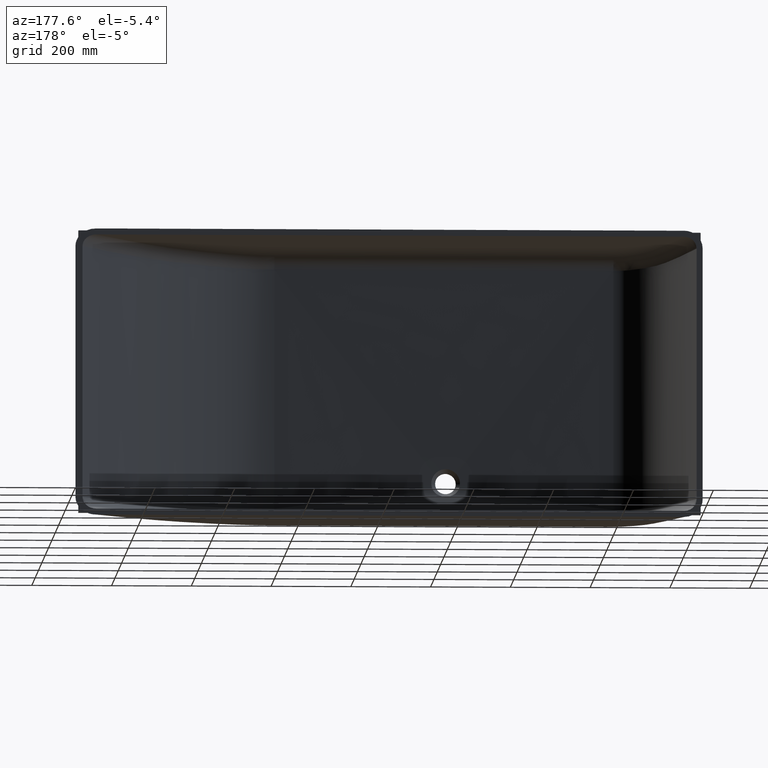
[diagram: clean part render]
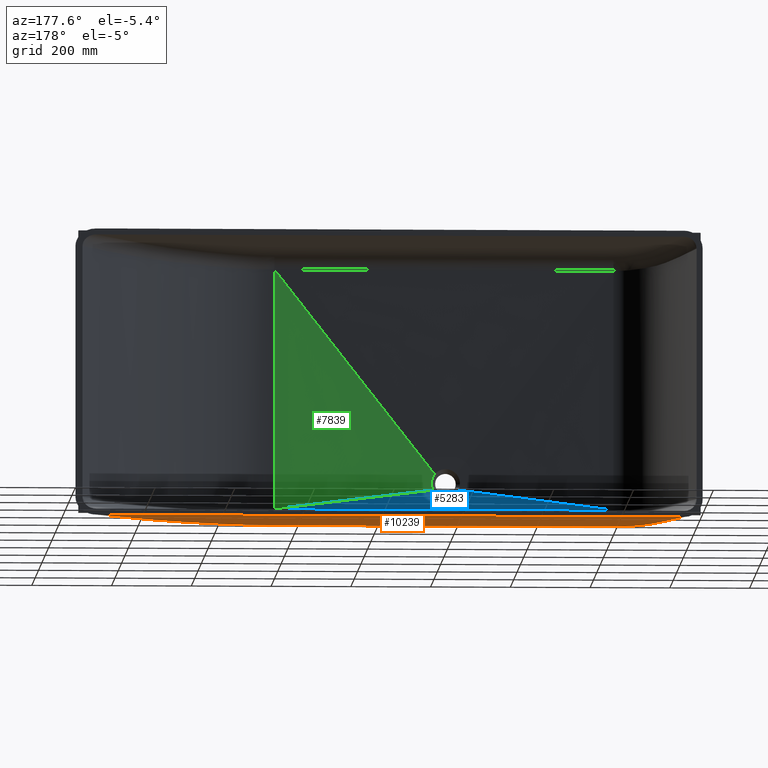
[diagram: same view with three faces highlighted in distinct colors, each labeled with its STEP entity id]
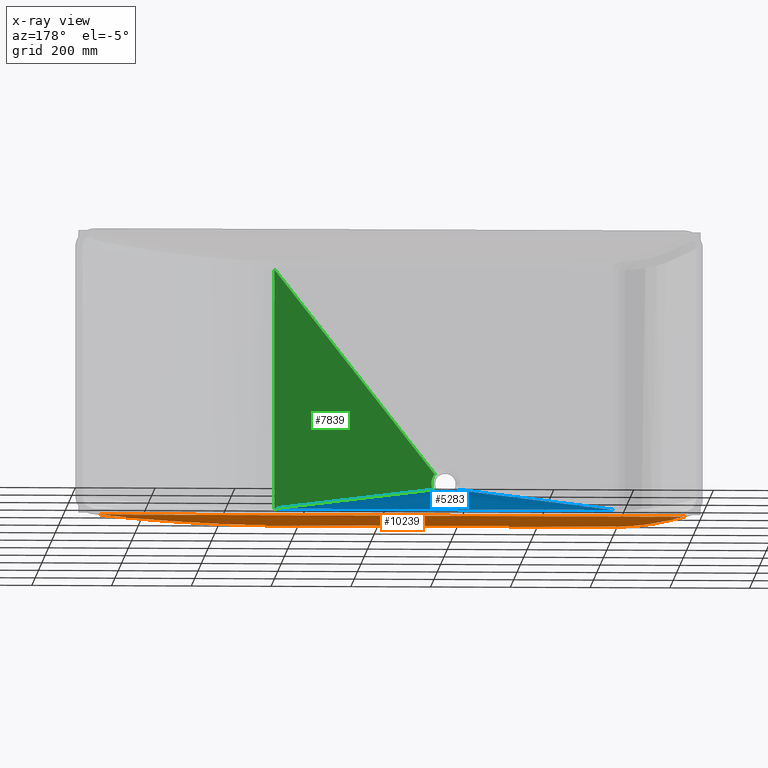
[diagram: x-ray of the same camera — body ghosted, the three highlighted faces saturated]
A machine part, auxiliary view with three faces highlighted in distinct colors.
The next image is the same camera in x-ray (body ghosted, the three faces saturated) — at least one of them is partly hidden behind the body in this view.
Their STEP definitions:

[orange] entity #10239 — the highlighted planar face has unit normal (0, -0.0333, -0.9994).
#10 = CARTESIAN_POINT ( 'NONE',  ( 1046.865730535653500, -421.4984982326275800, -0.9646515565076151400 ) ) ;
#57 = CARTESIAN_POINT ( 'NONE',  ( 1209.896210580514400, -346.9465903760623200, -3.448604754296329000 ) ) ;
#97 = CARTESIAN_POINT ( 'NONE',  ( 1093.178337236660800, -413.0805250620837800, -1.245125282493234200 ) ) ;
#103 = CARTESIAN_POINT ( 'NONE',  ( 1102.783573927033800, -409.7405222755598400, -1.356408961754285200 ) ) ;
#148 = CARTESIAN_POINT ( 'NONE',  ( 1067.025774963655300, -419.3927023063229700, -1.034813389724447400 ) ) ;
#153 = CARTESIAN_POINT ( 'NONE',  ( 1040.000000000000000, -421.4984982326274700, -0.9646515565076193600 ) ) ;
#190 = CARTESIAN_POINT ( 'NONE',  ( 1053.640508102532100, -421.0603657217691300, -0.9792494478652693500 ) ) ;
#195 = CARTESIAN_POINT ( 'NONE',  ( 1073.636302906296600, -418.1633575761898700, -1.075773237183749000 ) ) ;
#284 = CARTESIAN_POINT ( 'NONE',  ( 1086.712569645142400, -415.0071995986488700, -1.180931494382515100 ) ) ;
#433 = VECTOR ( 'NONE', #5955, 1000.000000000000000 ) ;
#717 = CARTESIAN_POINT ( 'NONE',  ( 1225.822637680009400, -334.4883271968789700, -3.863694636668772600 ) ) ;
#751 = VECTOR ( 'NONE', #10601, 1000.000000000000000 ) ;
#881 = EDGE_CURVE ( 'NONE', #1624, #5451, #8864, .T. ) ;
#1041 = CARTESIAN_POINT ( 'NONE',  ( 1223.174521956416600, -336.5745768866588000, -3.794184053542164000 ) ) ;
#1624 = VERTEX_POINT ( 'NONE', #3401 ) ;
#1881 = PLANE ( 'NONE',  #10833 ) ;
#1894 = DIRECTION ( 'NONE',  ( 0.0000000000000000000, 0.9994454025186718700, -0.03329996072505471400 ) ) ;
#1963 = DIRECTION ( 'NONE',  ( 5.251474874441641800E-019, -0.03329996072505471400, -0.9994454025186718700 ) ) ;
#2377 = VERTEX_POINT ( 'NONE', #9511 ) ;
#2415 = B_SPLINE_CURVE_WITH_KNOTS ( 'NONE', 3,
 ( #8277, #8339, #9143, #9171, #9193, #9213, #9227, #9233, #9248, #9272, #9297, #9312, #9322, #9342, #9359, #9362, #9402, #9419, #9431, #9461, #9475, #9489, #9512, #9564, #9582, #9617, #9618, #9657, #9700, #9727, #9745, #9747 ),
 .UNSPECIFIED., .F., .F.,
 ( 4, 2, 2, 2, 2, 2, 2, 2, 2, 2, 2, 2, 2, 2, 2, 4 ),
 ( 2.775896354064801500E-017, 0.02790883087507267700, 0.04186324631260909800, 0.05581766175014551300, 0.08372649262521826600, 0.1116353235002910300, 0.1186125312190591500, 0.1255897389378272400, 0.1395441543753634700, 0.1674529852504357000, 0.1953618161255079600, 0.2232706470005801900, 0.2790883087507248200, 0.3349059705008694000, 0.3907236322510139700, 0.4465412940011585000 ),
 .UNSPECIFIED. ) ;
#2442 = ORIENTED_EDGE ( 'NONE', *, *, #4609, .T. ) ;
#2730 = ORIENTED_EDGE ( 'NONE', *, *, #6078, .T. ) ;
#3230 = CARTESIAN_POINT ( 'NONE',  ( 30.20423168066489300, -2.294243974595697000E-014, -15.00832357845562500 ) ) ;
#3235 = LINE ( 'NONE', #5918, #433 ) ;
#3401 = CARTESIAN_POINT ( 'NONE',  ( 1505.568966152908600, 3.243769860183888700E-016, -15.00832357845562500 ) ) ;
#3683 = CARTESIAN_POINT ( 'NONE',  ( 190.0000000000001700, -421.4984982326275800, -0.9646515565076145800 ) ) ;
#4113 = VERTEX_POINT ( 'NONE', #3230 ) ;
#4404 = VERTEX_POINT ( 'NONE', #3683 ) ;
#4609 = EDGE_CURVE ( 'NONE', #5451, #4404, #3235, .T. ) ;
#4923 = LINE ( 'NONE', #5335, #751 ) ;
#5109 = CARTESIAN_POINT ( 'NONE',  ( 1490.919379188338100, -22.67712200114758400, -14.25275727128917500 ) ) ;
#5142 = EDGE_CURVE ( 'NONE', #2377, #4113, #2415, .T. ) ;
#5193 = CARTESIAN_POINT ( 'NONE',  ( 1505.568966152908600, 3.243769860183888700E-016, -15.00832357845562500 ) ) ;
#5205 = CARTESIAN_POINT ( 'NONE',  ( 1498.337011475481600, -11.40107286181569000, -14.62845762723389100 ) ) ;
#5207 = CARTESIAN_POINT ( 'NONE',  ( 1475.808980867540000, -45.04396237379493300, -13.50752906364947700 ) ) ;
#5224 = CARTESIAN_POINT ( 'NONE',  ( 170.0829550049796800, -413.9330991576792400, -1.216718844455781700 ) ) ;
#5242 = CARTESIAN_POINT ( 'NONE',  ( 1468.116131334333700, -56.13469738371957600, -13.13800308523007500 ) ) ;
#5256 = CARTESIAN_POINT ( 'NONE',  ( 175.6350607434774800, -418.8621611980603900, -1.052490191302330100 ) ) ;
#5258 = CARTESIAN_POINT ( 'NONE',  ( 1452.544538832019700, -78.19099835719318000, -12.40312156563358100 ) ) ;
#5271 = CARTESIAN_POINT ( 'NONE',  ( 1444.668362584578500, -89.15281948772523900, -12.03789079644716300 ) ) ;
#5294 = CARTESIAN_POINT ( 'NONE',  ( 1420.846444178742100, -121.8934052526219900, -10.94702558526212000 ) ) ;
#5307 = CARTESIAN_POINT ( 'NONE',  ( 1396.869185452995700, -154.5185800807556700, -9.860005686339219400 ) ) ;
#5332 = CARTESIAN_POINT ( 'NONE',  ( 1404.877057016953600, -143.6550019438840600, -10.22196315232950800 ) ) ;
#5335 = CARTESIAN_POINT ( 'NONE',  ( -3.009265538105056000E-033, -2.341876692568689600E-014, -15.00832357845562500 ) ) ;
#5336 = CARTESIAN_POINT ( 'NONE',  ( 1428.818675352227000, -111.0033478935276000, -11.30986529760424900 ) ) ;
#5349 = CARTESIAN_POINT ( 'NONE',  ( 1380.650724457041900, -176.0951260103047700, -9.141108855931412000 ) ) ;
#5372 = CARTESIAN_POINT ( 'NONE',  ( 1372.440230268814700, -186.8081645648591100, -8.784167133838721500 ) ) ;
#5385 = CARTESIAN_POINT ( 'NONE',  ( 1355.603470610837800, -207.9293987098498300, -8.080440581372270600 ) ) ;
#5387 = CARTESIAN_POINT ( 'NONE',  ( 1347.014477109476000, -218.3395620975385300, -7.733590187065758000 ) ) ;
#5399 = CARTESIAN_POINT ( 'NONE',  ( 1359.848763243580800, -202.6728704542242700, -8.255579897658467600 ) ) ;
#5421 = CARTESIAN_POINT ( 'NONE',  ( 1329.399988291124600, -238.7190672064635100, -7.054576888277174400 ) ) ;
#5436 = CARTESIAN_POINT ( 'NONE',  ( 1315.735757185329900, -253.5458448134157500, -6.560571802310213300 ) ) ;
#5451 = VERTEX_POINT ( 'NONE', #12392 ) ;
#5465 = CARTESIAN_POINT ( 'NONE',  ( 1333.862796063739300, -233.6839622286713300, -7.222338726577252300 ) ) ;
#5470 = CARTESIAN_POINT ( 'NONE',  ( 1292.367260423944100, -277.6564763358543400, -5.757243195534751800 ) ) ;
#5479 = CARTESIAN_POINT ( 'NONE',  ( 1342.670039686849800, -223.4942088803640300, -7.561845402421201200 ) ) ;
#5481 = CARTESIAN_POINT ( 'NONE',  ( 182.5756124340533400, -421.4984982326275300, -0.9646515565076149200 ) ) ;
#5488 = CARTESIAN_POINT ( 'NONE',  ( 1241.601761954845200, -321.8093662373190700, -4.286137824584647800 ) ) ;
#5505 = CARTESIAN_POINT ( 'NONE',  ( 1233.735999169755600, -328.1788782936541800, -4.073915625373759400 ) ) ;
#5510 = CARTESIAN_POINT ( 'NONE',  ( 1272.552217091908500, -295.8136490898813800, -5.152274541855872400 ) ) ;
#5518 = CARTESIAN_POINT ( 'NONE',  ( 1320.337417341580500, -248.6509663752467000, -6.723661511196834100 ) ) ;
#5520 = CARTESIAN_POINT ( 'NONE',  ( 190.0000000000001700, -421.4984982326275800, -0.9646515565076145800 ) ) ;
#5554 = CARTESIAN_POINT ( 'NONE',  ( 1177.198939147443100, -370.5375040999311400, -2.662592333314322400 ) ) ;
#5576 = CARTESIAN_POINT ( 'NONE',  ( 1246.801238970256000, -317.5182209673829400, -4.429112086704726900 ) ) ;
#5596 = CARTESIAN_POINT ( 'NONE',  ( 1165.993929280577500, -377.9208929188587300, -2.416589342987526500 ) ) ;
#5612 = CARTESIAN_POINT ( 'NONE',  ( 1231.102959158094800, -330.2908514724483700, -4.003547975746301700 ) ) ;
#5636 = CARTESIAN_POINT ( 'NONE',  ( 1199.150444469964700, -355.0509253115715800, -3.178580964727538000 ) ) ;
#5658 = CARTESIAN_POINT ( 'NONE',  ( 1148.658110306627600, -388.1666151877801700, -2.075217870073546900 ) ) ;
#5689 = CARTESIAN_POINT ( 'NONE',  ( 1142.791136785604500, -391.4431322571946300, -1.966049435808157100 ) ) ;
#5733 = CARTESIAN_POINT ( 'NONE',  ( 1130.844725480877500, -397.6626283065331800, -1.758825535782529800 ) ) ;
#5750 = CARTESIAN_POINT ( 'NONE',  ( 1124.766844078745600, -400.6080505798810800, -1.660688663299255900 ) ) ;
#5784 = CARTESIAN_POINT ( 'NONE',  ( 1117.006170223098900, -404.0334363982078100, -1.546560154697398600 ) ) ;
#5918 = CARTESIAN_POINT ( 'NONE',  ( 7.877212311662461000E-018, -421.4984982326274700, -0.9646515565076199100 ) ) ;
#5955 = DIRECTION ( 'NONE',  ( -1.000000000000000000, -1.748739070675182500E-020, -5.248562419703017300E-019 ) ) ;
#6067 = CARTESIAN_POINT ( 'NONE',  ( 1105.969753397151400, -408.5522040777181000, -1.396001869198085100 ) ) ;
#6078 = EDGE_CURVE ( 'NONE', #4404, #2377, #6100, .T. ) ;
#6100 =( BOUNDED_CURVE ( )  B_SPLINE_CURVE ( 3, ( #5520, #5481, #5256, #5224 ),
 .UNSPECIFIED., .F., .T. ) 
 B_SPLINE_CURVE_WITH_KNOTS ( ( 4, 4 ),
 ( 3.141592653589793100, 3.867616575456615600 ),
 .UNSPECIFIED. ) 
 CURVE ( )  GEOMETRIC_REPRESENTATION_ITEM ( )  RATIONAL_B_SPLINE_CURVE ( ( 1.000000000000000000, 0.9565543625811268000, 0.9565543625811268000, 1.000000000000000000 ) ) 
 REPRESENTATION_ITEM ( '' )  );
#6256 = CARTESIAN_POINT ( 'NONE',  ( 1112.307120440973200, -406.0217206859961700, -1.480313625845639700 ) ) ;
#6298 = CARTESIAN_POINT ( 'NONE',  ( 1115.445738749512400, -404.7054889418661200, -1.524168412984732800 ) ) ;
#6864 = CARTESIAN_POINT ( 'NONE',  ( 1110.727579799347500, -406.6664339557082700, -1.458832786065742600 ) ) ;
#7681 = FACE_OUTER_BOUND ( 'NONE', #8839, .T. ) ;
#7958 = CARTESIAN_POINT ( 'NONE',  ( 7.877212311662461000E-018, -0.4994994108758440400, -14.99168103778013100 ) ) ;
#8277 = CARTESIAN_POINT ( 'NONE',  ( 170.0829550049796800, -413.9330991576792400, -1.216718844455781700 ) ) ;
#8339 = CARTESIAN_POINT ( 'NONE',  ( 163.1914191799462500, -407.6524964218695000, -1.425978723889993700 ) ) ;
#8731 = ORIENTED_EDGE ( 'NONE', *, *, #11681, .F. ) ;
#8839 = EDGE_LOOP ( 'NONE', ( #8731, #12344, #2442, #2730, #9797 ) ) ;
#8864 = B_SPLINE_CURVE_WITH_KNOTS ( 'NONE', 3,
 ( #5193, #5205, #5109, #5207, #5242, #5258, #5271, #5336, #5294, #5332, #5307, #5349, #5372, #5399, #5385, #5387, #5479, #5465, #5421, #5518, #5436, #5470, #5510, #5576, #5488, #5505, #5612, #717, #1041, #57, #5636, #5554, #5596, #5658, #5689, #5733, #5750, #5784, #6298, #6256, #6864, #6067, #103, #97, #284, #195, #148, #190, #10, #153 ),
 .UNSPECIFIED., .F., .F.,
 ( 4, 2, 2, 2, 2, 2, 2, 2, 2, 2, 2, 2, 2, 2, 2, 2, 2, 2, 2, 2, 2, 2, 2, 2, 4 ),
 ( 0.0000000000000000000, 0.04050428562333218500, 0.08100857124666437100, 0.1215128568699965600, 0.1620171424933287400, 0.2025214281166609300, 0.2430257137399931800, 0.2632778565516591400, 0.2835299993633250700, 0.3037821421749910000, 0.3240342849866569800, 0.4050428562333212000, 0.4252949990449871300, 0.4354210704508198500, 0.4455471418566526700, 0.4860514274799823100, 0.5265557131033119500, 0.5468078559149768300, 0.5670599987266415900, 0.5721230344295579200, 0.5771860701324743600, 0.5873121415383071300, 0.6075642843499726700, 0.6278164271616382100, 0.6480685699733038700 ),
 .UNSPECIFIED. ) ;
#9143 = CARTESIAN_POINT ( 'NONE',  ( 156.7786301965437900, -400.9167312487763300, -1.650403905247460600 ) ) ;
#9171 = CARTESIAN_POINT ( 'NONE',  ( 147.8599452476674100, -390.1470934735686500, -2.009231425023641400 ) ) ;
#9193 = CARTESIAN_POINT ( 'NONE',  ( 145.0286069605856800, -386.4769695903866000, -2.131514223922096600 ) ) ;
#9213 = CARTESIAN_POINT ( 'NONE',  ( 139.6321742130001800, -378.9968548042912700, -2.380739972490407900 ) ) ;
#9227 = CARTESIAN_POINT ( 'NONE',  ( 137.0659753103964800, -375.1855600733426300, -2.507726363675162300 ) ) ;
#9233 = CARTESIAN_POINT ( 'NONE',  ( 129.7276490532976800, -363.5572720065110300, -2.895162770855876900 ) ) ;
#9248 = CARTESIAN_POINT ( 'NONE',  ( 125.3155634717982300, -355.5459981923677300, -3.162085909124862800 ) ) ;
#9272 = CARTESIAN_POINT ( 'NONE',  ( 117.2625983124196700, -339.1073036543106100, -3.709797551110467100 ) ) ;
#9297 = CARTESIAN_POINT ( 'NONE',  ( 113.6215535330783700, -330.6799720739950900, -3.990583084701670100 ) ) ;
#9312 = CARTESIAN_POINT ( 'NONE',  ( 109.4394638183422900, -319.9465765180829100, -4.348203070303315000 ) ) ;
#9322 = CARTESIAN_POINT ( 'NONE',  ( 108.6215337900258100, -317.7899212286736200, -4.420059458109761900 ) ) ;
#9342 = CARTESIAN_POINT ( 'NONE',  ( 107.0199458597028200, -313.4581172260640200, -4.564388405736130100 ) ) ;
#9359 = CARTESIAN_POINT ( 'NONE',  ( 106.2358389654747100, -311.2816684628168700, -4.636904281194250500 ) ) ;
#9362 = CARTESIAN_POINT ( 'NONE',  ( 103.9351295599423400, -304.7387901695480000, -4.854902772803300500 ) ) ;
#9402 = CARTESIAN_POINT ( 'NONE',  ( 102.4697284917903100, -300.3582791480629300, -5.000854562269325700 ) ) ;
#9419 = CARTESIAN_POINT ( 'NONE',  ( 98.24192383926967400, -287.1709762795051700, -5.440234909095398300 ) ) ;
#9431 = CARTESIAN_POINT ( 'NONE',  ( 95.64713211700603800, -278.3186284463168900, -5.735181320802007900 ) ) ;
#9461 = CARTESIAN_POINT ( 'NONE',  ( 90.73180537936723100, -260.5393913091026500, -6.327557749668123700 ) ) ;
#9475 = CARTESIAN_POINT ( 'NONE',  ( 88.41158069835793800, -251.6124176578956600, -6.624990577143958800 ) ) ;
#9489 = CARTESIAN_POINT ( 'NONE',  ( 83.89444321291374300, -233.7249548628042200, -7.220972915995422300 ) ) ;
#9511 = CARTESIAN_POINT ( 'NONE',  ( 170.0829550049796800, -413.9330991576792400, -1.216718844455781700 ) ) ;
#9512 = CARTESIAN_POINT ( 'NONE',  ( 81.69774966542715300, -224.7644061260820100, -7.519524412911246200 ) ) ;
#9564 = CARTESIAN_POINT ( 'NONE',  ( 75.08664670654552300, -197.8884736663799200, -8.414988530412737000 ) ) ;
#9582 = CARTESIAN_POINT ( 'NONE',  ( 70.63677403503044200, -179.9822544861467300, -9.011595802739595500 ) ) ;
#9617 = CARTESIAN_POINT ( 'NONE',  ( 61.81638166634287800, -144.1509774018236400, -10.20543802426526400 ) ) ;
#9618 = CARTESIAN_POINT ( 'NONE',  ( 57.44579579394645900, -126.2264238442567300, -10.80265616942536700 ) ) ;
#9657 = CARTESIAN_POINT ( 'NONE',  ( 48.96446075374787900, -90.31883579043676500, -11.99904095333687300 ) ) ;
#9700 = CARTESIAN_POINT ( 'NONE',  ( 44.85279648619835100, -72.33600725389342800, -12.59820072983214300 ) ) ;
#9727 = CARTESIAN_POINT ( 'NONE',  ( 37.10341975760739100, -36.26367877508707900, -13.80007440755220600 ) ) ;
#9745 = CARTESIAN_POINT ( 'NONE',  ( 33.46406215819821000, -18.17454910089754000, -14.40277597202280500 ) ) ;
#9747 = CARTESIAN_POINT ( 'NONE',  ( 30.20423168066489300, -2.294243974595697000E-014, -15.00832357845562500 ) ) ;
#9797 = ORIENTED_EDGE ( 'NONE', *, *, #5142, .T. ) ;
#10239 = ADVANCED_FACE ( 'NONE', ( #7681 ), #1881, .T. ) ;
#10601 = DIRECTION ( 'NONE',  ( -1.000000000000000000, -1.577021341797097500E-017, 0.0000000000000000000 ) ) ;
#10833 = AXIS2_PLACEMENT_3D ( 'NONE', #7958, #1963, #1894 ) ;
#11681 = EDGE_CURVE ( 'NONE', #1624, #4113, #4923, .T. ) ;
#12344 = ORIENTED_EDGE ( 'NONE', *, *, #881, .T. ) ;
#12392 = CARTESIAN_POINT ( 'NONE',  ( 1040.000000000000000, -421.4984982326274700, -0.9646515565076193600 ) ) ;

[blue] entity #5283 — the highlighted face is a freeform B-spline surface patch.
#1 = CARTESIAN_POINT ( 'NONE',  ( 595.5589996753749300, -460.0000000000000600, 88.27742880201418500 ) ) ;
#3 = CARTESIAN_POINT ( 'NONE',  ( 367.0833333333334300, -450.0000000000001100, 44.01039155683261600 ) ) ;
#11 = CARTESIAN_POINT ( 'NONE',  ( 599.2336019038665400, -460.0000000000001100, 86.24084888168448500 ) ) ;
#27 = CARTESIAN_POINT ( 'NONE',  ( 437.9166666666667400, -450.0000000000000600, 44.01039155683261600 ) ) ;
#43 = CARTESIAN_POINT ( 'NONE',  ( 601.2555615957861600, -460.0000000000001100, 85.41558565805834700 ) ) ;
#45 = CARTESIAN_POINT ( 'NONE',  ( 473.3333333333333700, -450.0000000000000600, 44.01039155683261600 ) ) ;
#84 = CARTESIAN_POINT ( 'NONE',  ( 579.5833333333333700, -450.0000000000000600, 44.01039155683262300 ) ) ;
#98 = CARTESIAN_POINT ( 'NONE',  ( 605.5190561606373200, -460.0000000000001100, 84.29436299466918600 ) ) ;
#117 = CARTESIAN_POINT ( 'NONE',  ( 650.4166666666666300, -450.0000000000000600, 44.01039155683261600 ) ) ;
#138 = CARTESIAN_POINT ( 'NONE',  ( 607.7589222424927600, -460.0000000000000600, 83.99999999999992900 ) ) ;
#166 = CARTESIAN_POINT ( 'NONE',  ( 593.9064925843240400, -459.9999999999999400, 89.48674265251605700 ) ) ;
#271 = CARTESIAN_POINT ( 'NONE',  ( 1076.428099985753500, -449.9999999999999400, 44.01039155683261600 ) ) ;
#280 = CARTESIAN_POINT ( 'NONE',  ( 756.6666666666666300, -450.0000000000000000, 44.01039155683261600 ) ) ;
#303 = CARTESIAN_POINT ( 'NONE',  ( 614.4809438393630200, -460.0000000000001100, 84.29436299466918600 ) ) ;
#339 = B_SPLINE_SURFACE_WITH_KNOTS ( 'NONE', 3, 1, ( 
 ( #9126, #12713 ),
 ( #12757, #12793 ),
 ( #12801, #12820 ),
 ( #12846, #12870 ),
 ( #12878, #12367 ),
 ( #12892, #12365 ),
 ( #400, #166 ),
 ( #3, #1 ),
 ( #27, #11 ),
 ( #45, #43 ),
 ( #688, #98 ),
 ( #84, #138 ),
 ( #117, #602 ),
 ( #779, #303 ),
 ( #280, #902 ),
 ( #953, #973 ),
 ( #991, #999 ),
 ( #1014, #1026 ),
 ( #1070, #1081 ),
 ( #1073, #1130 ),
 ( #1105, #921 ),
 ( #1149, #10144 ),
 ( #874, #761 ),
 ( #271, #462 ) ),
 .UNSPECIFIED., .F., .F., .F.,
 ( 4, 3, 2, 2, 2, 2, 2, 2, 2, 3, 4 ),
 ( 2, 2 ),
 ( -0.04116939064567356300, 0.0000000000000000000, 0.1250000000000000000, 0.2500000000000000000, 0.3750000000000000000, 0.5000000000000000000, 0.6250000000000000000, 0.7500000000000000000, 0.8750000000000000000, 1.000000000000000000, 1.042856588218533700 ),
 ( 0.0000000000000000000, 1.000000000000000000 ),
 .UNSPECIFIED. ) ;
#347 = CARTESIAN_POINT ( 'NONE',  ( 577.8299513548794300, -459.7414092245232400, 94.10762083505537100 ) ) ;
#387 = VERTEX_POINT ( 'NONE', #2347 ) ;
#400 = CARTESIAN_POINT ( 'NONE',  ( 331.6666666666668000, -450.0000000000000600, 44.01039155683261600 ) ) ;
#462 = CARTESIAN_POINT ( 'NONE',  ( 632.2689527080324300, -459.9999999999998300, 96.45742880846948700 ) ) ;
#557 = CARTESIAN_POINT ( 'NONE',  ( 641.9229721228485900, -459.7381218790376400, 93.63867329425293900 ) ) ;
#602 = CARTESIAN_POINT ( 'NONE',  ( 612.2410777575074700, -460.0000000000001100, 83.99999999999992900 ) ) ;
#688 = CARTESIAN_POINT ( 'NONE',  ( 544.1666666666667400, -450.0000000000000600, 44.01039155683261600 ) ) ;
#761 = CARTESIAN_POINT ( 'NONE',  ( 631.9185892429543400, -459.9999999999998900, 95.96271248444624300 ) ) ;
#779 = CARTESIAN_POINT ( 'NONE',  ( 685.8333333333332600, -450.0000000000000000, 44.01039155683261600 ) ) ;
#874 = CARTESIAN_POINT ( 'NONE',  ( 1064.285399990502400, -449.9999999999999400, 44.01039155683261600 ) ) ;
#902 = CARTESIAN_POINT ( 'NONE',  ( 618.7444384042138400, -460.0000000000000000, 85.41558565805833300 ) ) ;
#921 = CARTESIAN_POINT ( 'NONE',  ( 631.2178623127980500, -460.0000000000000000, 94.97327983639975500 ) ) ;
#953 = CARTESIAN_POINT ( 'NONE',  ( 792.0833333333332600, -450.0000000000000600, 44.01039155683261600 ) ) ;
#973 = CARTESIAN_POINT ( 'NONE',  ( 620.7663980961336800, -460.0000000000000000, 86.24084888168447100 ) ) ;
#991 = CARTESIAN_POINT ( 'NONE',  ( 862.9166666666665200, -450.0000000000000600, 44.01039155683261600 ) ) ;
#999 = CARTESIAN_POINT ( 'NONE',  ( 624.4410003246254100, -460.0000000000000000, 88.27742880201417100 ) ) ;
#1006 = EDGE_CURVE ( 'NONE', #3521, #7382, #4308, .T. ) ;
#1014 = CARTESIAN_POINT ( 'NONE',  ( 898.3333333333333700, -450.0000000000000000, 44.01039155683261600 ) ) ;
#1026 = CARTESIAN_POINT ( 'NONE',  ( 626.0935074156759600, -460.0000000000000600, 89.48674265251607100 ) ) ;
#1064 = CARTESIAN_POINT ( 'NONE',  ( 578.1019266185760400, -459.7321793014460200, 93.60838820246323200 ) ) ;
#1070 = CARTESIAN_POINT ( 'NONE',  ( 969.1666666666667400, -449.9999999999999400, 44.01039155683261600 ) ) ;
#1073 = CARTESIAN_POINT ( 'NONE',  ( 1004.583333333333400, -449.9999999999999400, 44.01039155683261600 ) ) ;
#1081 = CARTESIAN_POINT ( 'NONE',  ( 628.9705107992243700, -460.0000000000001100, 92.11384815118025000 ) ) ;
#1105 = CARTESIAN_POINT ( 'NONE',  ( 1040.000000000000000, -449.9999999999999400, 44.01039155683261600 ) ) ;
#1130 = CARTESIAN_POINT ( 'NONE',  ( 630.1959556479129100, -460.0000000000001100, 93.53033855074315300 ) ) ;
#1149 = CARTESIAN_POINT ( 'NONE',  ( 1052.142699995251200, -449.9999999999999400, 44.01039155683261600 ) ) ;
#1195 = ORIENTED_EDGE ( 'NONE', *, *, #1006, .F. ) ;
#1515 = CARTESIAN_POINT ( 'NONE',  ( 641.7082372391884100, -459.7312248473001000, 93.24274362230563900 ) ) ;
#1695 = CARTESIAN_POINT ( 'NONE',  ( 641.4860881880986200, -459.7240054388799400, 92.85360833836253400 ) ) ;
#1715 = CARTESIAN_POINT ( 'NONE',  ( 640.3523502936832300, -459.6868330087318700, 90.96974875358235100 ) ) ;
#1753 = CARTESIAN_POINT ( 'NONE',  ( 639.3296508886293200, -459.6492640528853100, 89.54899106228705800 ) ) ;
#1758 = CARTESIAN_POINT ( 'NONE',  ( 637.0703499586894600, -459.5517191933153600, 86.94077587668543600 ) ) ;
#1801 = CARTESIAN_POINT ( 'NONE',  ( 635.8155593358801500, -459.4898565637245700, 85.74155865446967100 ) ) ;
#1868 = CARTESIAN_POINT ( 'NONE',  ( 633.1820253354549100, -459.3383420943818000, 83.65362285404570700 ) ) ;
#1883 = CARTESIAN_POINT ( 'NONE',  ( 631.7896791716102600, -459.2475102175193300, 82.73733760727184000 ) ) ;
#1911 = CARTESIAN_POINT ( 'NONE',  ( 627.4150815820578400, -458.9337072455730900, 80.28005315529458100 ) ) ;
#1925 = CARTESIAN_POINT ( 'NONE',  ( 624.1533545685929300, -458.6498953803912300, 78.88234088648559400 ) ) ;
#1952 = FACE_OUTER_BOUND ( 'NONE', #3035, .T. ) ;
#1966 = CARTESIAN_POINT ( 'NONE',  ( 617.3674342039987600, -458.2187820260701300, 76.88994525980703500 ) ) ;
#1989 = CARTESIAN_POINT ( 'NONE',  ( 613.7130179710937900, -458.0826386084223700, 76.32630200226921600 ) ) ;
#2003 = CARTESIAN_POINT ( 'NONE',  ( 606.4283861625422100, -458.0765409850619100, 76.31609717986118800 ) ) ;
#2007 = CARTESIAN_POINT ( 'NONE',  ( 602.8740960409400000, -458.1986791642150900, 76.83458700326781400 ) ) ;
#2009 = ORIENTED_EDGE ( 'NONE', *, *, #5070, .F. ) ;
#2049 = CARTESIAN_POINT ( 'NONE',  ( 595.9755447452460000, -458.6210605726631700, 78.82007195794577100 ) ) ;
#2065 = CARTESIAN_POINT ( 'NONE',  ( 592.7135388228497300, -458.9040036705960100, 80.22157582049997900 ) ) ;
#2094 = CARTESIAN_POINT ( 'NONE',  ( 588.2839052542149100, -459.2263970814310000, 82.70983685289449700 ) ) ;
#2157 = CARTESIAN_POINT ( 'NONE',  ( 586.8721533422616400, -459.3202584536175000, 83.63715021246559900 ) ) ;
#2183 = CARTESIAN_POINT ( 'NONE',  ( 584.2061060843932400, -459.4769327553827300, 85.74682164018368300 ) ) ;
#2200 = CARTESIAN_POINT ( 'NONE',  ( 582.9651113214110900, -459.5396856372410600, 86.92948160627037200 ) ) ;
#2211 = CARTESIAN_POINT ( 'NONE',  ( 580.7069141500530800, -459.6401121769367300, 89.52116516661469300 ) ) ;
#2218 = CARTESIAN_POINT ( 'NONE',  ( 579.6823673875713900, -459.6789614433692500, 90.93594568798256700 ) ) ;
#2252 = CARTESIAN_POINT ( 'NONE',  ( 578.5409128617989200, -459.7175508023578900, 92.82301713489418700 ) ) ;
#2268 = CARTESIAN_POINT ( 'NONE',  ( 578.3176435509880100, -459.7250315719314800, 93.21239449179088900 ) ) ;
#2300 = CARTESIAN_POINT ( 'NONE',  ( 578.1019266185760400, -459.7321793014460200, 93.60838820246323200 ) ) ;
#2347 = CARTESIAN_POINT ( 'NONE',  ( 641.9229721228485900, -459.7381218790376400, 93.63867329425293900 ) ) ;
#2393 = ORIENTED_EDGE ( 'NONE', *, *, #2664, .F. ) ;
#2467 = CARTESIAN_POINT ( 'NONE',  ( 1040.000000000000900, -449.9999999999999400, 44.01039155683258700 ) ) ;
#2512 = CARTESIAN_POINT ( 'NONE',  ( 1040.000000000000000, -449.9999999999999400, 44.01039155683261600 ) ) ;
#2613 = DIRECTION ( 'NONE',  ( 1.000000000000000000, 1.306144734853125600E-016, -3.826431479001173600E-018 ) ) ;
#2664 = EDGE_CURVE ( 'NONE', #3526, #387, #4711, .T. ) ;
#2738 = EDGE_CURVE ( 'NONE', #7382, #10899, #11263, .T. ) ;
#2920 = ORIENTED_EDGE ( 'NONE', *, *, #3883, .F. ) ;
#3035 = EDGE_LOOP ( 'NONE', ( #2009, #4994, #8074, #4322, #1195, #2920, #2393, #5098 ) ) ;
#3521 = VERTEX_POINT ( 'NONE', #9124 ) ;
#3526 = VERTEX_POINT ( 'NONE', #8456 ) ;
#3883 = EDGE_CURVE ( 'NONE', #387, #3521, #10152, .T. ) ;
#4264 = CARTESIAN_POINT ( 'NONE',  ( 190.0000000000027600, -450.0000000000001100, 44.01039155683277200 ) ) ;
#4308 = B_SPLINE_CURVE_WITH_KNOTS ( 'NONE', 3,
 ( #1064, #347, #8428, #5938 ),
 .UNSPECIFIED., .F., .F.,
 ( 4, 4 ),
 ( 0.0000000000000000000, 1.000000000000000000 ),
 .UNSPECIFIED. ) ;
#4322 = ORIENTED_EDGE ( 'NONE', *, *, #2738, .F. ) ;
#4408 = CARTESIAN_POINT ( 'NONE',  ( 578.0266683209730400, -459.7302920981214200, 93.59877046924403000 ) ) ;
#4711 = B_SPLINE_CURVE_WITH_KNOTS ( 'NONE', 3,
 ( #7975, #12529, #12278, #12202 ),
 .UNSPECIFIED., .F., .F.,
 ( 4, 4 ),
 ( 0.0000000000000000000, 1.000000000000000000 ),
 .UNSPECIFIED. ) ;
#4851 = EDGE_CURVE ( 'NONE', #6123, #10899, #8145, .T. ) ;
#4935 = LINE ( 'NONE', #8055, #9800 ) ;
#4994 = ORIENTED_EDGE ( 'NONE', *, *, #9254, .F. ) ;
#5070 = EDGE_CURVE ( 'NONE', #11053, #12524, #4935, .T. ) ;
#5098 = ORIENTED_EDGE ( 'NONE', *, *, #5608, .F. ) ;
#5253 = VECTOR ( 'NONE', #6567, 1000.000000000000000 ) ;
#5283 = ADVANCED_FACE ( 'NONE', ( #1952 ), #339, .F. ) ;
#5608 = EDGE_CURVE ( 'NONE', #12524, #3526, #6172, .T. ) ;
#5938 = CARTESIAN_POINT ( 'NONE',  ( 577.3226770344522300, -459.7586965041450100, 95.13400013371148100 ) ) ;
#6123 = VERTEX_POINT ( 'NONE', #4264 ) ;
#6172 = B_SPLINE_CURVE_WITH_KNOTS ( 'NONE', 3,
 ( #10738, #10713, #10697, #10687 ),
 .UNSPECIFIED., .F., .F.,
 ( 4, 4 ),
 ( 0.0000000000000000000, 1.000000000000000000 ),
 .UNSPECIFIED. ) ;
#6519 = CARTESIAN_POINT ( 'NONE',  ( 389.3910688436011500, -455.0000000000000600, 69.49183569661617800 ) ) ;
#6567 = DIRECTION ( 'NONE',  ( 0.9916260114830399700, -0.02486635979319741500, 0.1267261516060245700 ) ) ;
#6651 = CARTESIAN_POINT ( 'NONE',  ( 641.9987091416459200, -459.7362691312824300, 93.62923115656698800 ) ) ;
#7056 = CARTESIAN_POINT ( 'NONE',  ( 577.3226770344522300, -459.7586965041450100, 95.13400013371148100 ) ) ;
#7382 = VERTEX_POINT ( 'NONE', #7056 ) ;
#7975 = CARTESIAN_POINT ( 'NONE',  ( 642.7263972494614600, -459.7647076671576100, 95.22259319501546300 ) ) ;
#8055 = CARTESIAN_POINT ( 'NONE',  ( 835.6089311563989700, -454.9999999999999400, 69.49183569661617800 ) ) ;
#8074 = ORIENTED_EDGE ( 'NONE', *, *, #4851, .T. ) ;
#8145 = LINE ( 'NONE', #6519, #5253 ) ;
#8219 = DIRECTION ( 'NONE',  ( -0.9920258770151769700, -0.02426783818460963700, 0.1236759126188866200 ) ) ;
#8428 = CARTESIAN_POINT ( 'NONE',  ( 577.5697915183551500, -459.7501728887097000, 94.61757934314310600 ) ) ;
#8456 = CARTESIAN_POINT ( 'NONE',  ( 642.7263972494614600, -459.7647076671576100, 95.22259319501546300 ) ) ;
#9030 = LINE ( 'NONE', #2512, #9803 ) ;
#9124 = CARTESIAN_POINT ( 'NONE',  ( 578.1019266185760400, -459.7321793014460200, 93.60838820246323200 ) ) ;
#9126 = CARTESIAN_POINT ( 'NONE',  ( 155.0060179511776500, -450.0000000000000600, 44.01039155683261600 ) ) ;
#9254 = EDGE_CURVE ( 'NONE', #6123, #11053, #9030, .T. ) ;
#9800 = VECTOR ( 'NONE', #8219, 1000.000000000000100 ) ;
#9803 = VECTOR ( 'NONE', #2613, 1000.000000000000000 ) ;
#10144 = CARTESIAN_POINT ( 'NONE',  ( 631.5682257778761400, -459.9999999999999400, 95.46799616042299900 ) ) ;
#10152 = B_SPLINE_CURVE_WITH_KNOTS ( 'NONE', 3,
 ( #557, #1515, #1695, #1715, #1753, #1758, #1801, #1868, #1883, #1911, #1925, #1966, #1989, #2003, #2007, #2049, #2065, #2094, #2157, #2183, #2200, #2211, #2218, #2252, #2268, #2300 ),
 .UNSPECIFIED., .F., .F.,
 ( 4, 2, 2, 2, 2, 2, 2, 2, 2, 2, 2, 2, 4 ),
 ( 0.0000000000000000000, 0.01743266458980646500, 0.08637448374410954000, 0.1553163028984129700, 0.2242581220527163900, 0.3621417603613229000, 0.5000253986699294600, 0.6379090369785359600, 0.7757926752871424600, 0.8447344944414458800, 0.9136763135957493000, 0.9826181327500523900, 1.000000000000000000 ),
 .UNSPECIFIED. ) ;
#10687 = CARTESIAN_POINT ( 'NONE',  ( 642.7263972494614600, -459.7647076671576100, 95.22259319501546300 ) ) ;
#10697 = CARTESIAN_POINT ( 'NONE',  ( 642.4966159393053400, -459.7549774265148100, 94.68515001874941100 ) ) ;
#10713 = CARTESIAN_POINT ( 'NONE',  ( 642.2538309867242100, -459.7455801759299400, 94.15365274843115600 ) ) ;
#10738 = CARTESIAN_POINT ( 'NONE',  ( 641.9987091416459200, -459.7362691312824300, 93.62923115656698800 ) ) ;
#10899 = VERTEX_POINT ( 'NONE', #4408 ) ;
#11053 = VERTEX_POINT ( 'NONE', #2467 ) ;
#11263 = B_SPLINE_CURVE_WITH_KNOTS ( 'NONE', 3,
 ( #12664, #12803, #12342, #12294 ),
 .UNSPECIFIED., .F., .F.,
 ( 4, 4 ),
 ( 0.0000000000000000000, 1.000000000000000000 ),
 .UNSPECIFIED. ) ;
#12202 = CARTESIAN_POINT ( 'NONE',  ( 641.9229721228485900, -459.7381218790376400, 93.63867329425293900 ) ) ;
#12278 = CARTESIAN_POINT ( 'NONE',  ( 642.2035484493171700, -459.7473681378299900, 94.15596440210983100 ) ) ;
#12294 = CARTESIAN_POINT ( 'NONE',  ( 578.0266683209730400, -459.7302920981214200, 93.59877046924403000 ) ) ;
#12342 = CARTESIAN_POINT ( 'NONE',  ( 577.7793250277990200, -459.7395310873834000, 94.10690610641410100 ) ) ;
#12365 = CARTESIAN_POINT ( 'NONE',  ( 591.0294892007756300, -460.0000000000000600, 92.11384815118027800 ) ) ;
#12367 = CARTESIAN_POINT ( 'NONE',  ( 589.8040443520873200, -459.9999999999999400, 93.53033855074318100 ) ) ;
#12524 = VERTEX_POINT ( 'NONE', #6651 ) ;
#12529 = CARTESIAN_POINT ( 'NONE',  ( 642.4716690322877600, -459.7561423702988500, 94.68508892824020500 ) ) ;
#12664 = CARTESIAN_POINT ( 'NONE',  ( 577.3226770344522300, -459.7586965041450100, 95.13400013371148100 ) ) ;
#12713 = CARTESIAN_POINT ( 'NONE',  ( 587.7724270946401900, -460.0000000000000000, 96.39900015963094400 ) ) ;
#12757 = CARTESIAN_POINT ( 'NONE',  ( 166.6706786341185000, -450.0000000000000600, 44.01039155683261600 ) ) ;
#12793 = CARTESIAN_POINT ( 'NONE',  ( 588.1089972921607800, -460.0000000000000000, 95.92376005188721400 ) ) ;
#12801 = CARTESIAN_POINT ( 'NONE',  ( 178.3353393170593200, -450.0000000000000600, 44.01039155683261600 ) ) ;
#12803 = CARTESIAN_POINT ( 'NONE',  ( 577.5446636193247500, -459.7489524522559900, 94.61853909391825800 ) ) ;
#12820 = CARTESIAN_POINT ( 'NONE',  ( 588.4455674896814800, -460.0000000000000000, 95.44851994414348400 ) ) ;
#12846 = CARTESIAN_POINT ( 'NONE',  ( 190.0000000000001700, -450.0000000000000600, 44.01039155683261600 ) ) ;
#12870 = CARTESIAN_POINT ( 'NONE',  ( 588.7821376872020700, -460.0000000000000000, 94.97327983639975500 ) ) ;
#12878 = CARTESIAN_POINT ( 'NONE',  ( 225.4166666666668300, -450.0000000000000600, 44.01039155683261600 ) ) ;
#12892 = CARTESIAN_POINT ( 'NONE',  ( 260.8333333333334800, -450.0000000000000600, 44.01039155683261600 ) ) ;

[green] entity #7839 — the highlighted face is a freeform B-spline surface patch.
#436 = CARTESIAN_POINT ( 'NONE',  ( 835.6089311563989700, -454.9999999999999400, 385.5081643033837500 ) ) ;
#482 = B_SPLINE_SURFACE_WITH_KNOTS ( 'NONE', 3, 1, ( 
 ( #6962, #8690, #6917 ),
 ( #6883, #6838, #6802 ),
 ( #6760, #6718, #6679 ),
 ( #6640, #6591, #6551 ),
 ( #6090, #6055, #5984 ),
 ( #5946, #5908, #5831 ),
 ( #5790, #5737, #5693 ),
 ( #5647, #5603, #5095 ),
 ( #5053, #4967, #4920 ),
 ( #4880, #4847, #4755 ),
 ( #4678, #4591, #4157 ),
 ( #4109, #3962, #3925 ),
 ( #3888, #3845, #3812 ),
 ( #3767, #3719, #3668 ),
 ( #3620, #3153, #3112 ),
 ( #3031, #2994, #2952 ),
 ( #2860, #2770, #2725 ),
 ( #2677, #2628, #2114 ),
 ( #1943, #1900, #1859 ),
 ( #1819, #1780, #1730 ),
 ( #1627, #1577, #1029 ),
 ( #992, #943, #896 ),
 ( #844, #795, #750 ),
 ( #707, #666, #622 ) ),
 .UNSPECIFIED., .F., .F., .F.,
 ( 4, 3, 2, 2, 2, 2, 2, 2, 2, 3, 4 ),
 ( 2, 1, 2 ),
 ( -0.01000000000000000000, 0.0000000000000000000, 0.1250000000000000000, 0.2500000000000000000, 0.3750000000000000000, 0.5000000000000000000, 0.6250000000000000000, 0.7500000000000000000, 0.8750000000000000000, 1.000000000000000000, 1.010414648225689000 ),
 ( -0.01000000000000000000, 0.0000000000000000000, 1.000000000000000000 ),
 .UNSPECIFIED. ) ;
#622 = CARTESIAN_POINT ( 'NONE',  ( 631.0369660266725300, -460.0000000000000000, 125.2821473260226700 ) ) ;
#666 = CARTESIAN_POINT ( 'NONE',  ( 1040.000000000000000, -449.9999999999999400, 652.2590102262140600 ) ) ;
#707 = CARTESIAN_POINT ( 'NONE',  ( 1044.089630339733500, -449.8999999999999800, 657.5287788552159300 ) ) ;
#750 = CARTESIAN_POINT ( 'NONE',  ( 631.0972647887143700, -460.0000000000000000, 125.1970049385485200 ) ) ;
#795 = CARTESIAN_POINT ( 'NONE',  ( 1040.000000000000000, -449.9999999999999400, 650.1692096318651000 ) ) ;
#844 = CARTESIAN_POINT ( 'NONE',  ( 1044.089027352113100, -449.8999999999999800, 655.4189316787982300 ) ) ;
#896 = CARTESIAN_POINT ( 'NONE',  ( 631.1575635507562100, -460.0000000000000000, 125.1118625510743700 ) ) ;
#943 = CARTESIAN_POINT ( 'NONE',  ( 1040.000000000000000, -449.9999999999999400, 648.0794090375161400 ) ) ;
#992 = CARTESIAN_POINT ( 'NONE',  ( 1044.088424364492500, -449.8999999999999800, 653.3090845023805300 ) ) ;
#1029 = CARTESIAN_POINT ( 'NONE',  ( 631.2178623127980500, -460.0000000000000000, 125.0267201636002300 ) ) ;
#1336 = ORIENTED_EDGE ( 'NONE', *, *, #5630, .F. ) ;
#1381 = ORIENTED_EDGE ( 'NONE', *, *, #3706, .T. ) ;
#1577 = CARTESIAN_POINT ( 'NONE',  ( 1040.000000000000000, -449.9999999999999400, 645.9896084431671900 ) ) ;
#1627 = CARTESIAN_POINT ( 'NONE',  ( 1044.087821376872200, -449.8999999999999800, 651.1992373259628300 ) ) ;
#1730 = CARTESIAN_POINT ( 'NONE',  ( 631.9415876938081700, -460.0000000000001100, 124.0048134987149100 ) ) ;
#1780 = CARTESIAN_POINT ( 'NONE',  ( 1040.000000000000000, -449.9999999999999400, 620.9071410729031900 ) ) ;
#1819 = CARTESIAN_POINT ( 'NONE',  ( 1044.080584123062000, -449.8999999999999800, 625.8761643486451500 ) ) ;
#1859 = CARTESIAN_POINT ( 'NONE',  ( 632.6080252111926300, -460.0000000000001100, 122.9065678488946000 ) ) ;
#1900 = CARTESIAN_POINT ( 'NONE',  ( 1040.000000000000000, -449.9999999999999400, 595.8246737026394200 ) ) ;
#1943 = CARTESIAN_POINT ( 'NONE',  ( 1044.073919747888100, -449.8999999999999800, 600.5538547611768100 ) ) ;
#2114 = CARTESIAN_POINT ( 'NONE',  ( 633.7865389259823100, -460.0000000000001100, 120.5784149810246600 ) ) ;
#2284 = EDGE_LOOP ( 'NONE', ( #4151, #1381, #4210, #1336 ) ) ;
#2467 = CARTESIAN_POINT ( 'NONE',  ( 1040.000000000000900, -449.9999999999999400, 44.01039155683258700 ) ) ;
#2486 = B_SPLINE_CURVE_WITH_KNOTS ( 'NONE', 3,
 ( #10624, #10577, #10560, #10520, #10491, #10480, #10455, #10436, #10415, #10399 ),
 .UNSPECIFIED., .F., .F.,
 ( 4, 2, 2, 2, 4 ),
 ( 0.0000000000000000000, 0.2521577423546932400, 0.5612988490982919700, 0.8704399558418907100, 1.000000000000000000 ),
 .UNSPECIFIED. ) ;
#2628 = CARTESIAN_POINT ( 'NONE',  ( 1040.000000000000000, -449.9999999999999400, 545.6597389621114200 ) ) ;
#2677 = CARTESIAN_POINT ( 'NONE',  ( 1044.062134610740300, -449.8999999999999800, 549.9105522019223100 ) ) ;
#2725 = CARTESIAN_POINT ( 'NONE',  ( 634.2984326170186500, -460.0000000000001100, 119.3485391643953200 ) ) ;
#2770 = CARTESIAN_POINT ( 'NONE',  ( 1040.000000000000000, -449.9999999999999400, 520.5772715918474200 ) ) ;
#2860 = CARTESIAN_POINT ( 'NONE',  ( 1044.057015673829700, -449.8999999999999800, 524.5895589161218600 ) ) ;
#2952 = CARTESIAN_POINT ( 'NONE',  ( 635.1333613025684600, -460.0000000000000600, 116.7914035211133100 ) ) ;
#2994 = CARTESIAN_POINT ( 'NONE',  ( 1040.000000000000000, -449.9999999999999400, 470.4123368513195400 ) ) ;
#3031 = CARTESIAN_POINT ( 'NONE',  ( 1044.048666386974400, -449.8999999999999800, 473.9485461846216500 ) ) ;
#3112 = CARTESIAN_POINT ( 'NONE',  ( 635.4562322813551400, -460.0000000000000000, 115.4642627332213000 ) ) ;
#3153 = CARTESIAN_POINT ( 'NONE',  ( 1040.000000000000000, -449.9999999999999400, 445.3298694810556000 ) ) ;
#3433 = CARTESIAN_POINT ( 'NONE',  ( 1040.000000000000000, -449.9999999999999400, 645.9896084431671900 ) ) ;
#3620 = CARTESIAN_POINT ( 'NONE',  ( 1044.045437677186300, -449.8999999999999800, 448.6285255485339600 ) ) ;
#3668 = CARTESIAN_POINT ( 'NONE',  ( 635.8896005536569200, -460.0000000000000600, 112.7579906366914700 ) ) ;
#3706 = EDGE_CURVE ( 'NONE', #7675, #11053, #11941, .T. ) ;
#3719 = CARTESIAN_POINT ( 'NONE',  ( 1040.000000000000000, -449.9999999999999400, 395.1649347405276600 ) ) ;
#3767 = CARTESIAN_POINT ( 'NONE',  ( 1044.041103994463600, -449.8999999999999800, 397.9890041815660300 ) ) ;
#3812 = CARTESIAN_POINT ( 'NONE',  ( 636.0000000000001100, -459.9999999999999400, 111.3790498804083000 ) ) ;
#3845 = CARTESIAN_POINT ( 'NONE',  ( 1040.000000000000000, -449.9999999999999400, 370.0824673702637100 ) ) ;
#3888 = CARTESIAN_POINT ( 'NONE',  ( 1044.040000000000200, -449.8999999999999800, 372.6695015451622900 ) ) ;
#3925 = CARTESIAN_POINT ( 'NONE',  ( 636.0000000000002300, -460.0000000000000600, 108.6209501195916700 ) ) ;
#3962 = CARTESIAN_POINT ( 'NONE',  ( 1040.000000000000000, -449.9999999999999400, 319.9175326297358300 ) ) ;
#4040 = FACE_OUTER_BOUND ( 'NONE', #2284, .T. ) ;
#4109 = CARTESIAN_POINT ( 'NONE',  ( 1044.040000000000200, -449.8999999999999800, 322.0304984548373000 ) ) ;
#4151 = ORIENTED_EDGE ( 'NONE', *, *, #11524, .F. ) ;
#4157 = CARTESIAN_POINT ( 'NONE',  ( 635.8896005536568100, -460.0000000000000000, 107.2420093633085100 ) ) ;
#4210 = ORIENTED_EDGE ( 'NONE', *, *, #5070, .T. ) ;
#4481 = CARTESIAN_POINT ( 'NONE',  ( 637.6062096691138100, -459.8437224436356100, 133.1682008772856400 ) ) ;
#4591 = CARTESIAN_POINT ( 'NONE',  ( 1040.000000000000000, -449.9999999999999400, 294.8350652594718900 ) ) ;
#4678 = CARTESIAN_POINT ( 'NONE',  ( 1044.041103994463600, -449.8999999999999800, 296.7109958184335000 ) ) ;
#4755 = CARTESIAN_POINT ( 'NONE',  ( 635.4562322813551400, -460.0000000000000600, 104.5357372667786500 ) ) ;
#4847 = CARTESIAN_POINT ( 'NONE',  ( 1040.000000000000000, -449.9999999999999400, 244.6701305189440300 ) ) ;
#4880 = CARTESIAN_POINT ( 'NONE',  ( 1044.045437677186300, -449.8999999999999800, 246.0714744514656900 ) ) ;
#4920 = CARTESIAN_POINT ( 'NONE',  ( 635.1333613025683500, -459.9999999999999400, 103.2085964788866800 ) ) ;
#4935 = LINE ( 'NONE', #8055, #9800 ) ;
#4967 = CARTESIAN_POINT ( 'NONE',  ( 1040.000000000000000, -449.9999999999999400, 219.5876631486801500 ) ) ;
#5053 = CARTESIAN_POINT ( 'NONE',  ( 1044.048666386974400, -449.8999999999999800, 220.7514538153780800 ) ) ;
#5070 = EDGE_CURVE ( 'NONE', #11053, #12524, #4935, .T. ) ;
#5095 = CARTESIAN_POINT ( 'NONE',  ( 634.2984326170186500, -460.0000000000000600, 100.6514608356046100 ) ) ;
#5603 = CARTESIAN_POINT ( 'NONE',  ( 1040.000000000000000, -449.9999999999999400, 169.4227284081522700 ) ) ;
#5630 = EDGE_CURVE ( 'NONE', #12708, #12524, #2486, .T. ) ;
#5647 = CARTESIAN_POINT ( 'NONE',  ( 1044.057015673829700, -449.8999999999999800, 170.1104410838777300 ) ) ;
#5693 = CARTESIAN_POINT ( 'NONE',  ( 633.7865389259820900, -460.0000000000001100, 99.42158501897530700 ) ) ;
#5737 = CARTESIAN_POINT ( 'NONE',  ( 1040.000000000000000, -449.9999999999999400, 144.3402610378883300 ) ) ;
#5790 = CARTESIAN_POINT ( 'NONE',  ( 1044.062134610740300, -449.8999999999999800, 144.7894477980774500 ) ) ;
#5831 = CARTESIAN_POINT ( 'NONE',  ( 632.6080252111927400, -460.0000000000001700, 97.09343215110536100 ) ) ;
#5908 = CARTESIAN_POINT ( 'NONE',  ( 1040.000000000000000, -449.9999999999999400, 94.17532629736047100 ) ) ;
#5946 = CARTESIAN_POINT ( 'NONE',  ( 1044.073919747888100, -449.8999999999999800, 94.14614523882303800 ) ) ;
#5984 = CARTESIAN_POINT ( 'NONE',  ( 631.9415876938080600, -459.9999999999999400, 95.99518650128504800 ) ) ;
#6055 = CARTESIAN_POINT ( 'NONE',  ( 1040.000000000000000, -449.9999999999999400, 69.09285892709654300 ) ) ;
#6090 = CARTESIAN_POINT ( 'NONE',  ( 1044.080584123062000, -449.8999999999999800, 68.82383565135467100 ) ) ;
#6551 = CARTESIAN_POINT ( 'NONE',  ( 631.2178623127980500, -460.0000000000000000, 94.97327983639975500 ) ) ;
#6591 = CARTESIAN_POINT ( 'NONE',  ( 1040.000000000000000, -449.9999999999999400, 44.01039155683261600 ) ) ;
#6640 = CARTESIAN_POINT ( 'NONE',  ( 1044.087821376872200, -449.8999999999999800, 43.50076267403694900 ) ) ;
#6651 = CARTESIAN_POINT ( 'NONE',  ( 641.9987091416459200, -459.7362691312824300, 93.62923115656698800 ) ) ;
#6679 = CARTESIAN_POINT ( 'NONE',  ( 631.1599642823172200, -460.0000000000000000, 94.89152730320891700 ) ) ;
#6718 = CARTESIAN_POINT ( 'NONE',  ( 1040.000000000000000, -449.9999999999999400, 42.00379416721150200 ) ) ;
#6760 = CARTESIAN_POINT ( 'NONE',  ( 1044.088400357176900, -449.8999999999999800, 41.47491683585153800 ) ) ;
#6802 = CARTESIAN_POINT ( 'NONE',  ( 631.1020662518363900, -460.0000000000000000, 94.80977477001809500 ) ) ;
#6838 = CARTESIAN_POINT ( 'NONE',  ( 1040.000000000000000, -449.9999999999999400, 39.99719677759039600 ) ) ;
#6883 = CARTESIAN_POINT ( 'NONE',  ( 1044.088979337481800, -449.8999999999999800, 39.44907099766611900 ) ) ;
#6917 = CARTESIAN_POINT ( 'NONE',  ( 631.0441682213555600, -460.0000000000000000, 94.72802223682725800 ) ) ;
#6962 = CARTESIAN_POINT ( 'NONE',  ( 1044.089558317786400, -449.8999999999999800, 37.42322515948070100 ) ) ;
#7675 = VERTEX_POINT ( 'NONE', #3433 ) ;
#7734 = DIRECTION ( 'NONE',  ( -0.6172413871653015200, -0.01509951953031801700, -0.7866289306148153100 ) ) ;
#7838 = VECTOR ( 'NONE', #7734, 1000.000000000000000 ) ;
#7839 = ADVANCED_FACE ( 'NONE', ( #4040 ), #482, .F. ) ;
#8055 = CARTESIAN_POINT ( 'NONE',  ( 835.6089311563989700, -454.9999999999999400, 69.49183569661617800 ) ) ;
#8183 = DIRECTION ( 'NONE',  ( -0.0000000000000000000, -0.0000000000000000000, -1.000000000000000000 ) ) ;
#8219 = DIRECTION ( 'NONE',  ( -0.9920258770151769700, -0.02426783818460963700, 0.1236759126188866200 ) ) ;
#8368 = CARTESIAN_POINT ( 'NONE',  ( 1040.000000000000000, -450.0000000000000600, 690.0000000000000000 ) ) ;
#8690 = CARTESIAN_POINT ( 'NONE',  ( 1040.000000000000000, -449.9999999999999400, 37.99059938796928300 ) ) ;
#9330 = VECTOR ( 'NONE', #8183, 1000.000000000000000 ) ;
#9800 = VECTOR ( 'NONE', #8219, 1000.000000000000100 ) ;
#10399 = CARTESIAN_POINT ( 'NONE',  ( 641.9987091416459200, -459.7362691312824300, 93.62923115656698800 ) ) ;
#10415 = CARTESIAN_POINT ( 'NONE',  ( 642.8203480134034200, -459.7328543906637000, 95.24794641074956300 ) ) ;
#10436 = CARTESIAN_POINT ( 'NONE',  ( 643.5204213050713000, -459.7313819685128400, 96.93057564666644100 ) ) ;
#10455 = CARTESIAN_POINT ( 'NONE',  ( 645.4721057812280400, -459.7296865023753300, 102.8241125631283900 ) ) ;
#10480 = CARTESIAN_POINT ( 'NONE',  ( 646.0786666277953100, -459.7369393066873600, 107.1093965190154900 ) ) ;
#10491 = CARTESIAN_POINT ( 'NONE',  ( 645.7308549774616000, -459.7640657708356000, 115.8957636081944900 ) ) ;
#10520 = CARTESIAN_POINT ( 'NONE',  ( 644.7918774177796900, -459.7821222698225400, 120.1072985732855200 ) ) ;
#10560 = CARTESIAN_POINT ( 'NONE',  ( 641.7026803034023000, -459.8165563334544000, 127.4261076622880500 ) ) ;
#10577 = CARTESIAN_POINT ( 'NONE',  ( 639.8770741445820200, -459.8298844229997300, 130.4323176135060900 ) ) ;
#10624 = CARTESIAN_POINT ( 'NONE',  ( 637.6062096691138100, -459.8437224436356100, 133.1682008772856400 ) ) ;
#11053 = VERTEX_POINT ( 'NONE', #2467 ) ;
#11524 = EDGE_CURVE ( 'NONE', #7675, #12708, #12725, .T. ) ;
#11941 = LINE ( 'NONE', #8368, #9330 ) ;
#12524 = VERTEX_POINT ( 'NONE', #6651 ) ;
#12708 = VERTEX_POINT ( 'NONE', #4481 ) ;
#12725 = LINE ( 'NONE', #436, #7838 ) ;